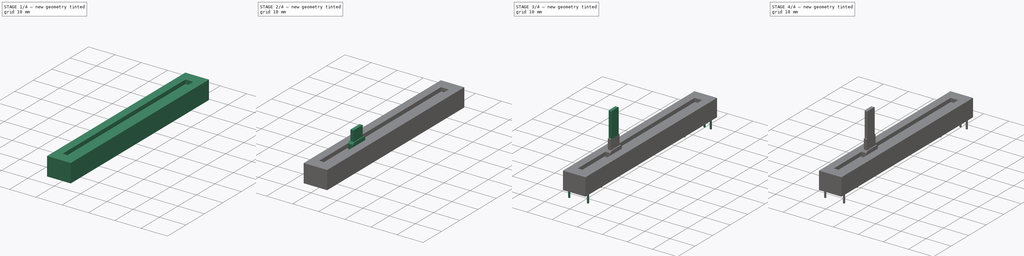
[diagram: build sequence overview — one tinted view per stage of 4, left to right]
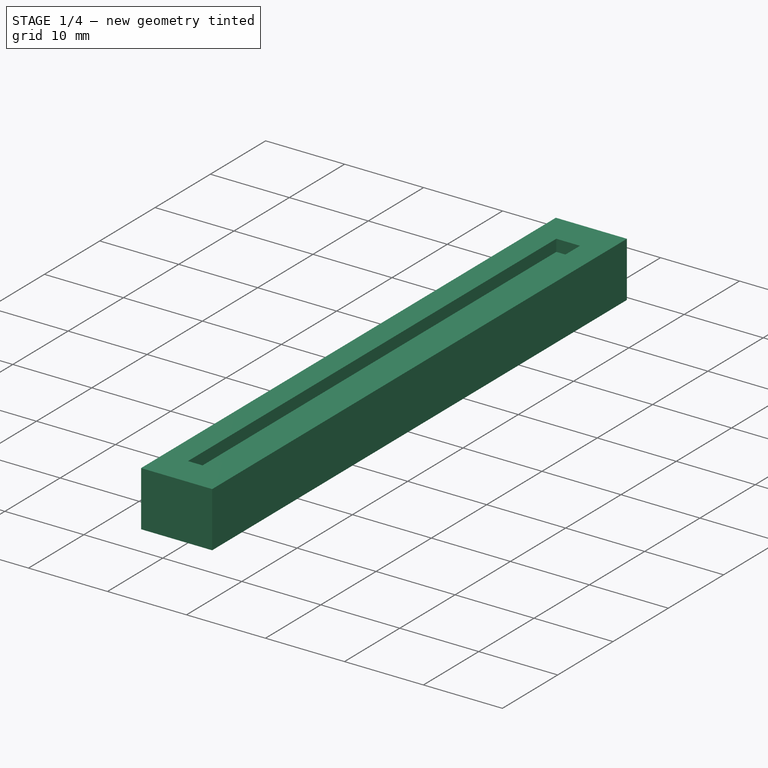
[diagram: stage 1 of 4 — iso view after this stage's code; geometry added in this stage tinted green]
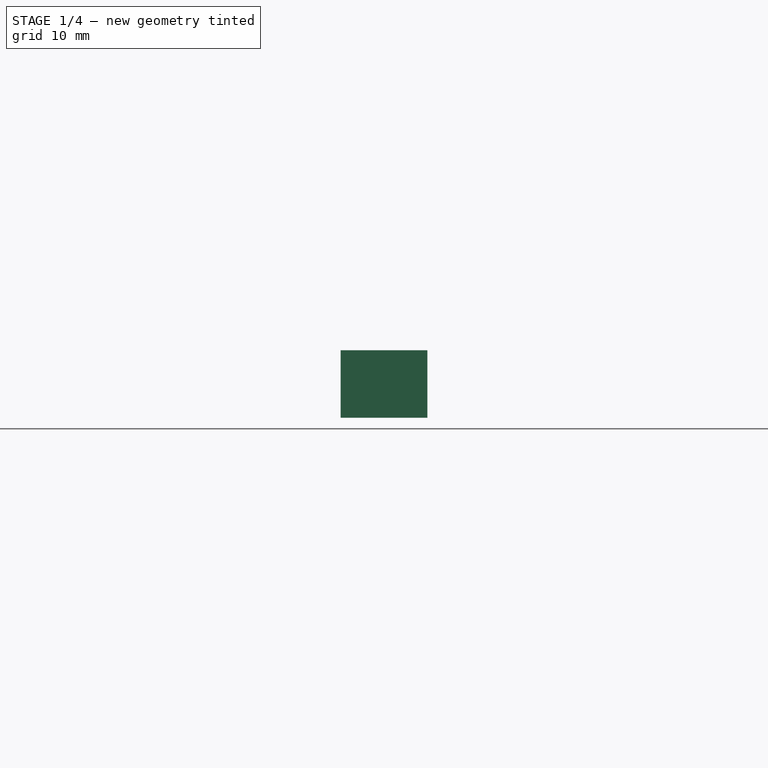
[diagram: stage 1 of 4 — front view after this stage's code; geometry added in this stage tinted green]
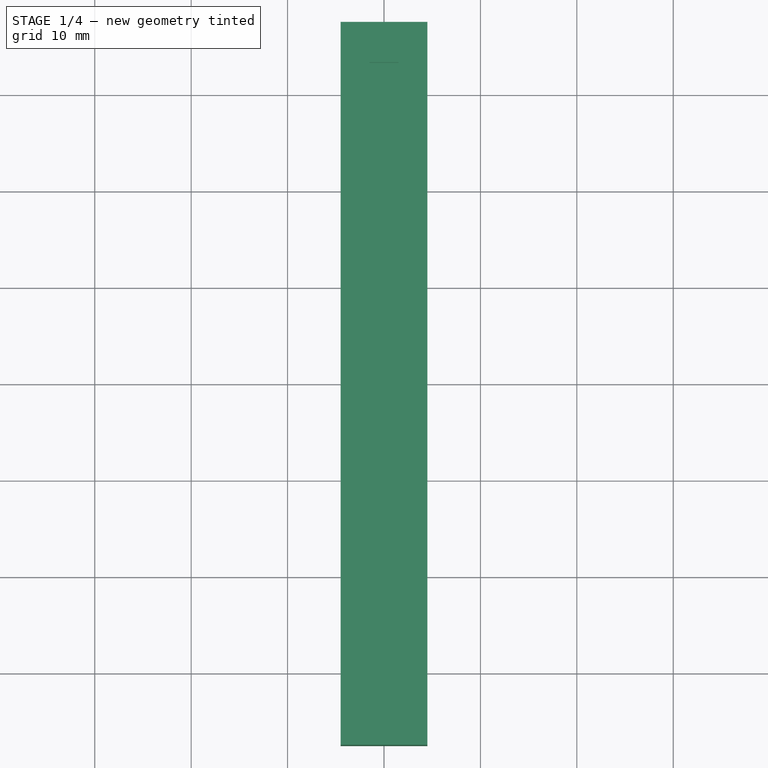
[diagram: stage 1 of 4 — top view after this stage's code; geometry added in this stage tinted green]
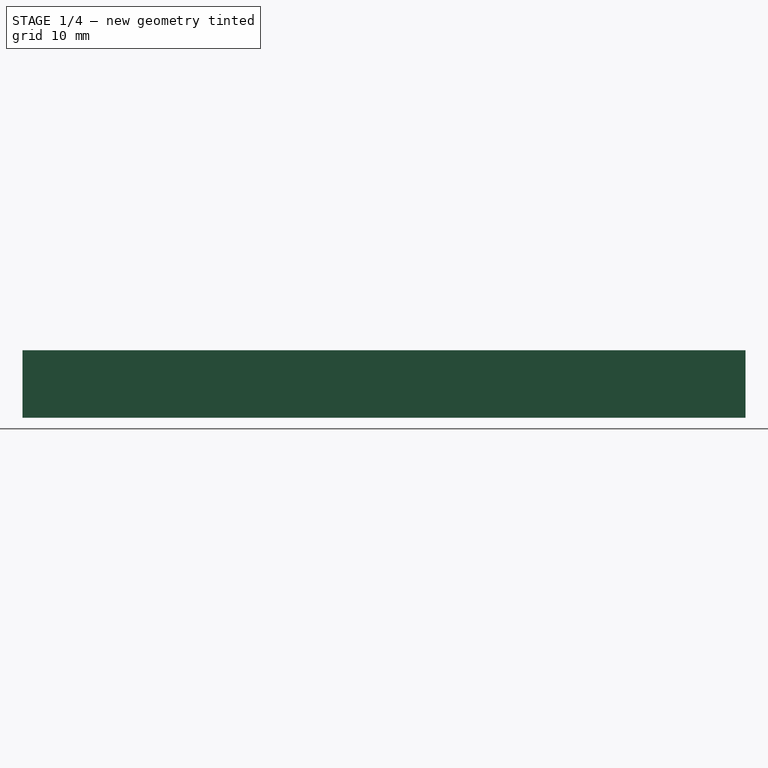
[diagram: stage 1 of 4 — right view after this stage's code; geometry added in this stage tinted green]
FCSTD DOCUMENT  (FreeCAD 0.18R16146 (Git))
Label: ALPS_RS6011YA6009
License: All rights reserved
LicenseURL: http://en.wikipedia.org/wiki/All_rights_reserved
objects: Sketcher::SketchObject×7, PartDesign::Pad×5, PartDesign::Fillet×2, PartDesign::Pocket×1, PartDesign::Chamfer×1, PartDesign::Hole×1, PartDesign::Body×1
note: 25 computed .brp shape members not serialized (recipe doc carries the construction recipe); baked Part::Feature solids carry a one-line shape summary decoded from their .brp

FEATURE [Sketcher::SketchObject] Sketch
  MapMode = 5
  Support = -> [XY_Plane]
  sketch-geometry (4):
    g0: LineSegment StartX=-4.5 StartY=37.5 StartZ=0 EndX=4.5 EndY=37.5 EndZ=0
    g1: LineSegment StartX=4.5 StartY=37.5 StartZ=0 EndX=4.5 EndY=-37.5 EndZ=0
    g2: LineSegment StartX=4.5 StartY=-37.5 StartZ=0 EndX=-4.5 EndY=-37.5 EndZ=0
    g3: LineSegment StartX=-4.5 StartY=-37.5 StartZ=0 EndX=-4.5 EndY=37.5 EndZ=0
  constraints (11):
    c: Coincident(g0,g1)
    c: Coincident(g1,g2)
    c: Coincident(g2,g3)
    c: Coincident(g3,g0)
    c: Horizontal(g0)
    c: Horizontal(g2)
    c: Vertical(g1)
    c: Vertical(g3)
    c: DistanceX(g0,g0) = 9
    c: DistanceY(g1,g1) = 75
    c: Symmetric(g0,g1,g-1)
FEATURE [PartDesign::Pad] Pad
  Length = 7
  Length2 = 100
  Profile = -> Sketch
  Type = 0
FEATURE [Sketcher::SketchObject] Sketch001
  MapMode = 5
  Placement = pos=(0,0,7) rot=(0,0,1;0rad)
  Support = -> [Pad]
  sketch-geometry (4):
    g0: LineSegment StartX=-1.5 StartY=33.3 StartZ=0 EndX=1.5 EndY=33.3 EndZ=0
    g1: LineSegment StartX=1.5 StartY=33.3 StartZ=0 EndX=1.5 EndY=-33.3 EndZ=0
    g2: LineSegment StartX=1.5 StartY=-33.3 StartZ=0 EndX=-1.5 EndY=-33.3 EndZ=0
    g3: LineSegment StartX=-1.5 StartY=-33.3 StartZ=0 EndX=-1.5 EndY=33.3 EndZ=0
  constraints (11):
    c: Coincident(g0,g1)
    c: Coincident(g1,g2)
    c: Coincident(g2,g3)
    c: Coincident(g3,g0)
    c: Horizontal(g0)
    c: Horizontal(g2)
    c: Vertical(g1)
    c: Vertical(g3)
    c: Symmetric(g0,g1,g-1)
    c: DistanceX(g0,g0) = 3
    c: DistanceY(g1,g1) = 66.6
FEATURE [PartDesign::Pocket] Pocket
  BaseFeature = -> Pad
  Length = 1.5
  Length2 = 100
  Profile = -> Sketch001
  Type = 0
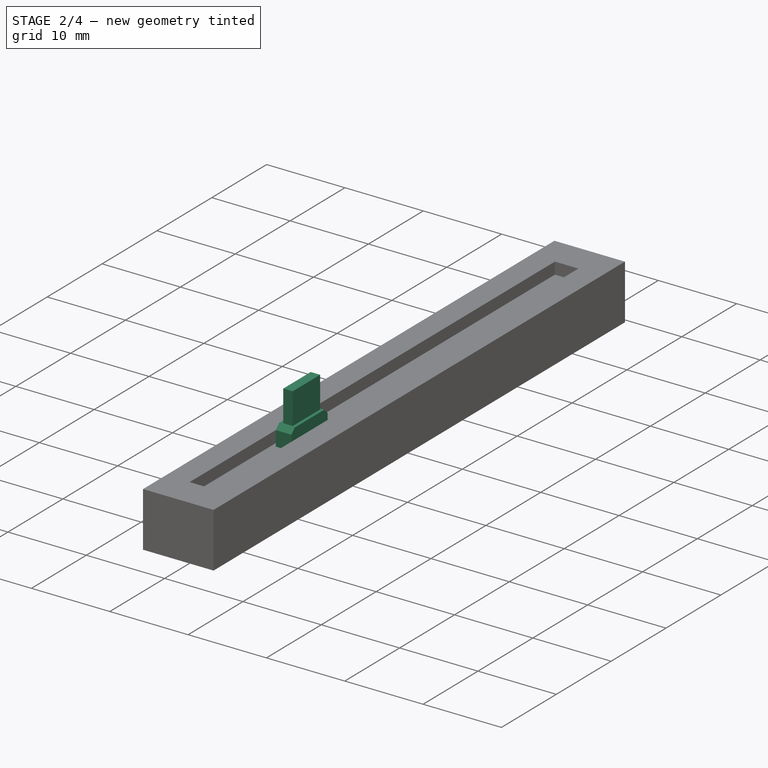
[diagram: stage 2 of 4 — iso view after this stage's code; geometry added in this stage tinted green]
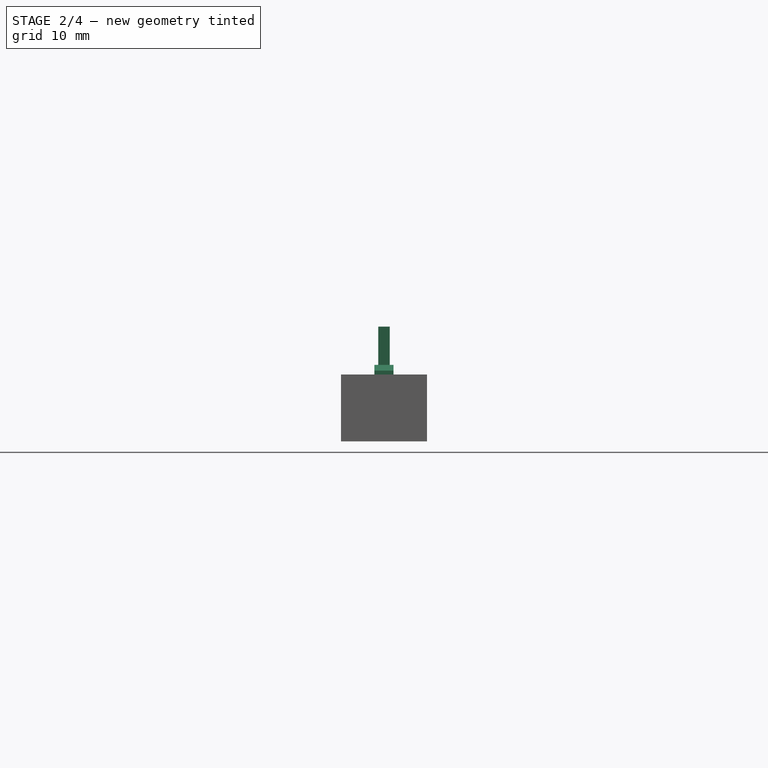
[diagram: stage 2 of 4 — front view after this stage's code; geometry added in this stage tinted green]
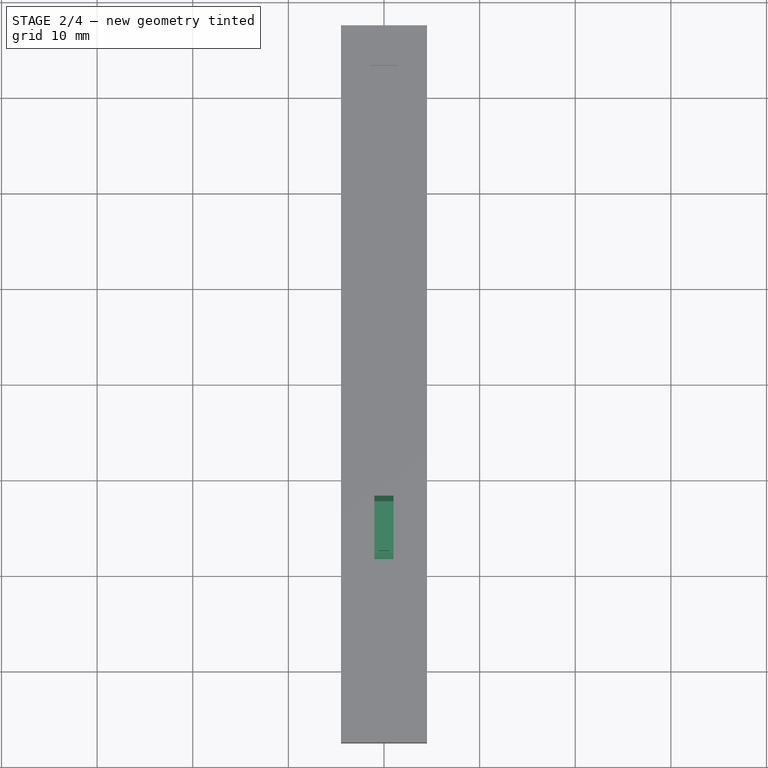
[diagram: stage 2 of 4 — top view after this stage's code; geometry added in this stage tinted green]
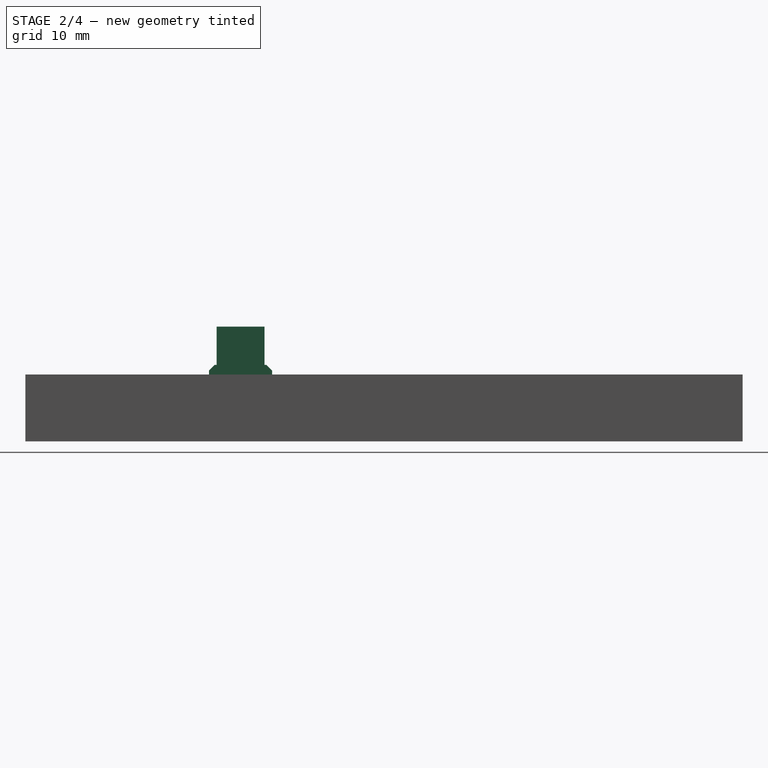
[diagram: stage 2 of 4 — right view after this stage's code; geometry added in this stage tinted green]
FEATURE [Sketcher::SketchObject] Sketch002
  MapMode = 5
  Placement = pos=(0,0,5.5) rot=(0,0,1;0rad)
  Support = -> [Pocket]
  sketch-geometry (5):
    g0: LineSegment StartX=-1 StartY=-11.7 StartZ=0 EndX=1 EndY=-11.7 EndZ=0
    g1: LineSegment StartX=1 StartY=-11.7 StartZ=0 EndX=1 EndY=-18.3 EndZ=0
    g2: LineSegment StartX=1 StartY=-18.3 StartZ=0 EndX=-1 EndY=-18.3 EndZ=0
    g3: LineSegment StartX=-1 StartY=-18.3 StartZ=0 EndX=-1 EndY=-11.7 EndZ=0
    g4: GeomPoint X=0 Y=-15 Z=0
  constraints (13):
    c: Coincident(g0,g1)
    c: Coincident(g1,g2)
    c: Coincident(g2,g3)
    c: Coincident(g3,g0)
    c: Horizontal(g0)
    c: Horizontal(g2)
    c: Vertical(g1)
    c: Vertical(g3)
    c: PointOnObject(g4,g-2)
    c: Symmetric(g0,g1,g4)
    c: DistanceY(g1,g1) = 6.6  'Länge Schieber'
    c: DistanceY(g4,g-1) = 15  'Verschiebung'
    c: DistanceX(g0,g0) = 2
FEATURE [PartDesign::Pad] Pad001  label="Schiebersockel"
  BaseFeature = -> Pocket
  Length = 2.5
  Length2 = 100
  Profile = -> Sketch002
  Type = 0
FEATURE [PartDesign::Chamfer] Chamfer
  Base = -> Pad001 [Edge35,Edge31]
  BaseFeature = -> Pad001
  Size = 0.6
FEATURE [Sketcher::SketchObject] Sketch003
  ExternalGeometry = -> [Chamfer]
  MapMode = 5
  Placement = pos=(0,0,8) rot=(0,0,1;0rad)
  Support = -> [Chamfer]
  sketch-geometry (5):
    g0: LineSegment StartX=-0.6 StartY=-12.5 StartZ=0 EndX=0.6 EndY=-12.5 EndZ=0
    g1: LineSegment StartX=0.6 StartY=-12.5 StartZ=0 EndX=0.6 EndY=-17.5 EndZ=0
    g2: LineSegment StartX=0.6 StartY=-17.5 StartZ=0 EndX=-0.6 EndY=-17.5 EndZ=0
    g3: LineSegment StartX=-0.6 StartY=-17.5 StartZ=0 EndX=-0.6 EndY=-12.5 EndZ=0
    g4: GeomPoint X=-6e-16 Y=-15 Z=0
  constraints (12):
    c: Coincident(g0,g1)
    c: Coincident(g1,g2)
    c: Coincident(g2,g3)
    c: Coincident(g3,g0)
    c: Horizontal(g0)
    c: Horizontal(g2)
    c: Vertical(g1)
    c: Vertical(g3)
    c: Symmetric(g0,g1,g4)
    c: DistanceY(g1,g1) = 5
    c: Symmetric(g-3,g-4,g4)
    c: DistanceX(g0,g0) = 1.2
FEATURE [PartDesign::Pad] Pad002  label="Schieber"
  BaseFeature = -> Chamfer
  Length = 4
  Length2 = 100
  Profile = -> Sketch003
  Type = 0
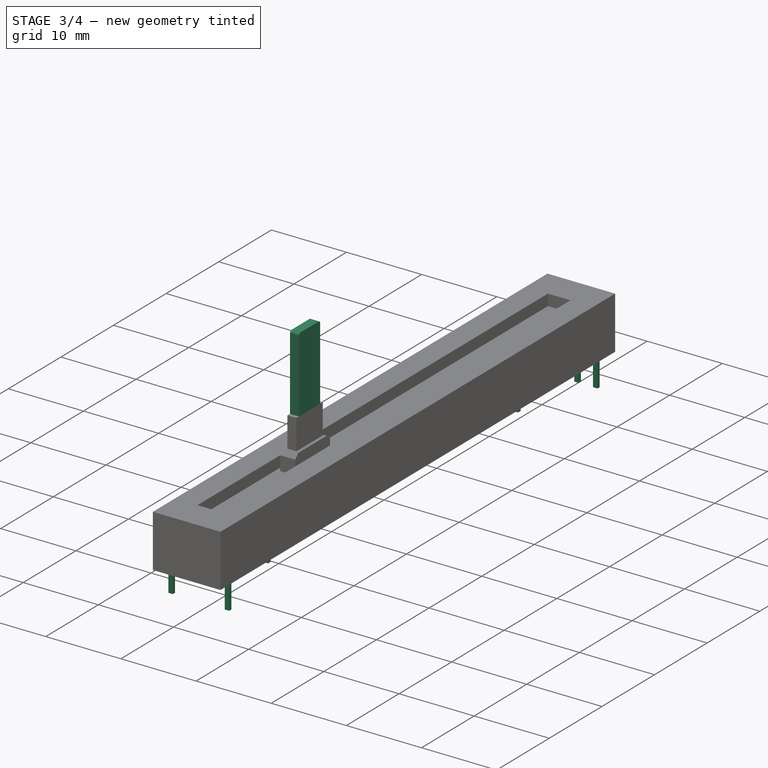
[diagram: stage 3 of 4 — iso view after this stage's code; geometry added in this stage tinted green]
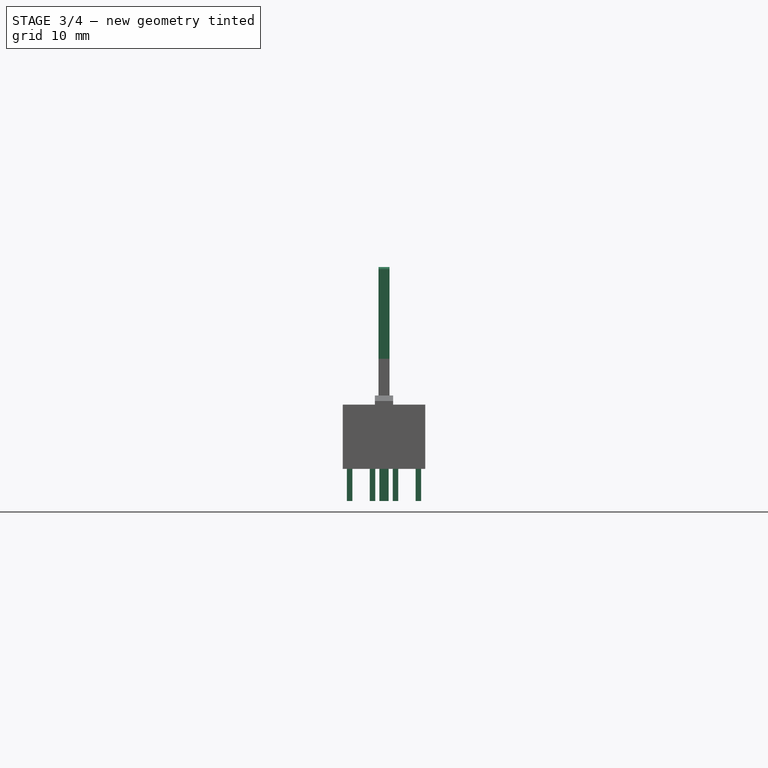
[diagram: stage 3 of 4 — front view after this stage's code; geometry added in this stage tinted green]
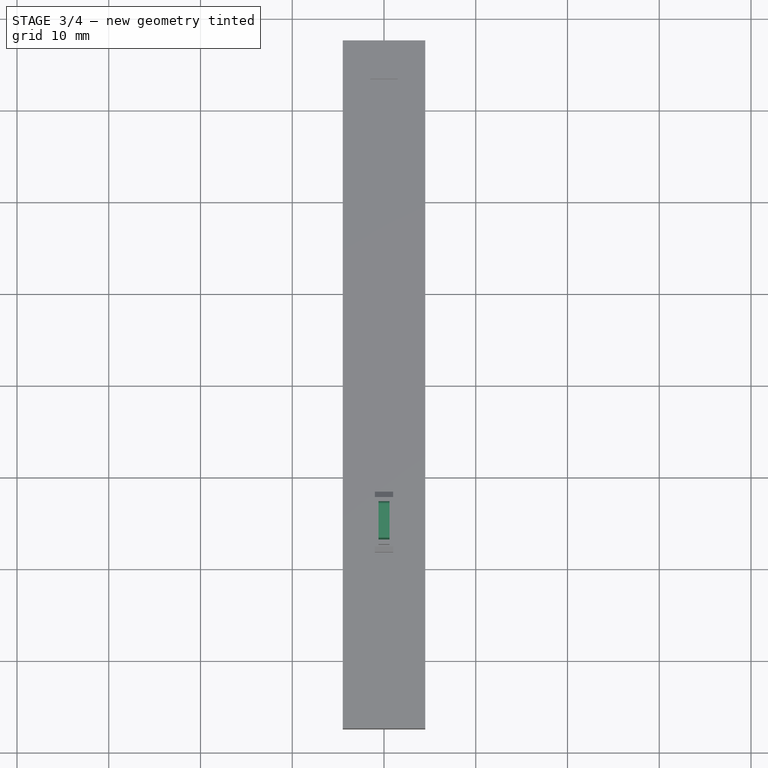
[diagram: stage 3 of 4 — top view after this stage's code; geometry added in this stage tinted green]
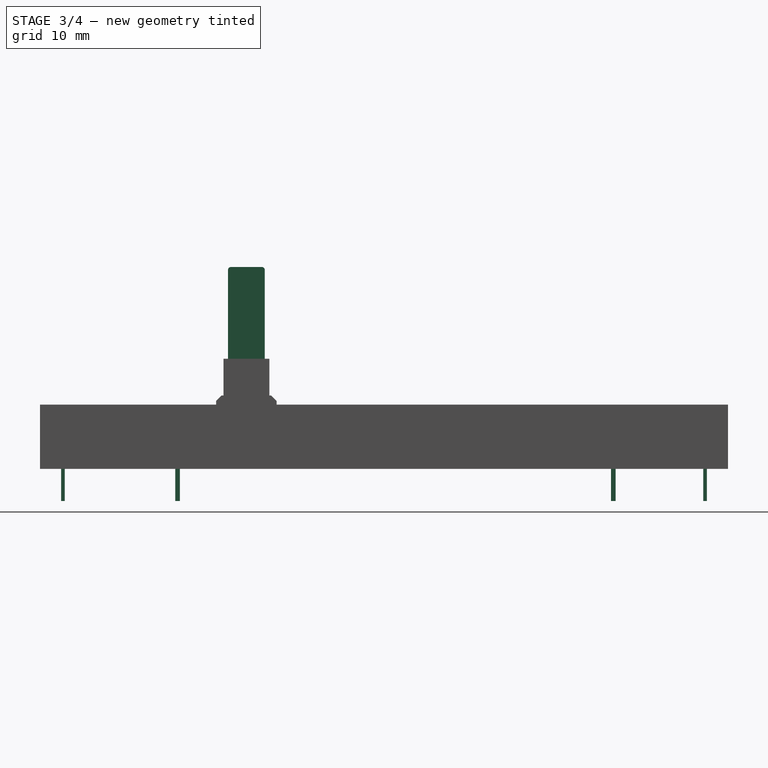
[diagram: stage 3 of 4 — right view after this stage's code; geometry added in this stage tinted green]
FEATURE [Sketcher::SketchObject] CopySketch004  label="Sketch004"
  Placement = pos=(0,0,12) rot=(0,0,1;0rad)
  sketch-geometry (5):
    g0: GeomPoint X=8e-16 Y=-15 Z=0
    g1: LineSegment StartX=-0.6 StartY=-13 StartZ=0 EndX=0.6 EndY=-13 EndZ=0
    g2: LineSegment StartX=0.6 StartY=-13 StartZ=0 EndX=0.6 EndY=-17 EndZ=0
    g3: LineSegment StartX=0.6 StartY=-17 StartZ=0 EndX=-0.6 EndY=-17 EndZ=0
    g4: LineSegment StartX=-0.6 StartY=-17 StartZ=0 EndX=-0.6 EndY=-13 EndZ=0
  constraints (10):
    c: Coincident(g1,g2)
    c: Coincident(g2,g3)
    c: Coincident(g3,g4)
    c: Coincident(g4,g1)
    c: Horizontal(g1)
    c: Horizontal(g3)
    c: Vertical(g2)
    c: Vertical(g4)
    c: DistanceY(g2,g2) = 4
    c: Symmetric(g2,g1,g0)
FEATURE [PartDesign::Pad] Pad003
  BaseFeature = -> Pad002
  Length = 10
  Length2 = 100
  Profile = -> CopySketch004
  Type = 0
FEATURE [PartDesign::Fillet] Fillet
  Base = -> Pad003 [Edge68,Edge67]
  BaseFeature = -> Pad003
  Radius = 0.3
FEATURE [Sketcher::SketchObject] Sketch004  label="BohrskizzeM2"
  MapMode = 5
  Placement = pos=(0,0,7) rot=(0,0,1;0rad)
  Support = -> [Fillet]
  sketch-geometry (2):
    g0: Circle CenterX=0 CenterY=35.312 CenterZ=0 NormalX=0 NormalY=0 NormalZ=1 AngleXU=0 Radius=1
    g1: Circle CenterX=0 CenterY=-35.688 CenterZ=0 NormalX=0 NormalY=0 NormalZ=1 AngleXU=0 Radius=1
  constraints (5):
    c: PointOnObject(g0,g-2)
    c: Diameter(g0) = 2  'Gewinde M2'
    c: PointOnObject(g1,g-2)
    c: Equal(g1,g0)
    c: DistanceY(g1,g0) = 71
FEATURE [Sketcher::SketchObject] Sketch005  label="Sketch006"
  MapMode = 5
  Placement = pos=(0,0,0) rot=(1,0,0;3.14159rad)
  Support = -> [Fillet]
  sketch-geometry (40):
    g0: LineSegment [constr] StartX=3.75 StartY=-35 StartZ=0 EndX=-3.75 EndY=-35 EndZ=0
    g1: LineSegment [constr] StartX=-3.75 StartY=-35 StartZ=0 EndX=-3.75 EndY=35 EndZ=0
    g2: LineSegment [constr] StartX=-3.75 StartY=35 StartZ=0 EndX=3.75 EndY=35 EndZ=0
    g3: LineSegment [constr] StartX=3.75 StartY=35 StartZ=0 EndX=3.75 EndY=-35 EndZ=0
    g4: LineSegment StartX=-4.05 StartY=35.2 StartZ=0 EndX=-3.45 EndY=35.2 EndZ=0
    g5: LineSegment StartX=-3.45 StartY=35.2 StartZ=0 EndX=-3.45 EndY=34.8 EndZ=0
    g6: LineSegment StartX=-3.45 StartY=34.8 StartZ=0 EndX=-4.05 EndY=34.8 EndZ=0
    g7: LineSegment StartX=-4.05 StartY=34.8 StartZ=0 EndX=-4.05 EndY=35.2 EndZ=0
    g8: LineSegment StartX=-4.05 StartY=-34.8 StartZ=0 EndX=-3.45 EndY=-34.8 EndZ=0
    g9: LineSegment StartX=-3.45 StartY=-34.8 StartZ=0 EndX=-3.45 EndY=-35.2 EndZ=0
    g10: LineSegment StartX=-3.45 StartY=-35.2 StartZ=0 EndX=-4.05 EndY=-35.2 EndZ=0
    g11: LineSegment StartX=-4.05 StartY=-35.2 StartZ=0 EndX=-4.05 EndY=-34.8 EndZ=0
    g12: LineSegment StartX=3.45 StartY=-34.8 StartZ=0 EndX=4.05 EndY=-34.8 EndZ=0
    g13: LineSegment StartX=4.05 StartY=-34.8 StartZ=0 EndX=4.05 EndY=-35.2 EndZ=0
    g14: LineSegment StartX=4.05 StartY=-35.2 StartZ=0 EndX=3.45 EndY=-35.2 EndZ=0
    g15: LineSegment StartX=3.45 StartY=-35.2 StartZ=0 EndX=3.45 EndY=-34.8 EndZ=0
    g16: GeomPoint X=-1.25 Y=-35 Z=0
    g17: GeomPoint X=1.25 Y=-35 Z=0
    g18: LineSegment StartX=-1.55 StartY=-34.8 StartZ=0 EndX=-0.95 EndY=-34.8 EndZ=0
    g19: LineSegment StartX=-0.95 StartY=-34.8 StartZ=0 EndX=-0.95 EndY=-35.2 EndZ=0
    g20: LineSegment StartX=-0.95 StartY=-35.2 StartZ=0 EndX=-1.55 EndY=-35.2 EndZ=0
    g21: LineSegment StartX=-1.55 StartY=-35.2 StartZ=0 EndX=-1.55 EndY=-34.8 EndZ=0
    g22: LineSegment StartX=0.95 StartY=-34.8 StartZ=0 EndX=1.55 EndY=-34.8 EndZ=0
    g23: LineSegment StartX=1.55 StartY=-34.8 StartZ=0 EndX=1.55 EndY=-35.2 EndZ=0
    g24: LineSegment StartX=1.55 StartY=-35.2 StartZ=0 EndX=0.95 EndY=-35.2 EndZ=0
    g25: LineSegment StartX=0.95 StartY=-35.2 StartZ=0 EndX=0.95 EndY=-34.8 EndZ=0
    g26: GeomPoint X=0 Y=22.5 Z=0
    g27: GeomPoint X=0 Y=-25 Z=0
    g28: LineSegment StartX=-0.5 StartY=22.75 StartZ=0 EndX=0.5 EndY=22.75 EndZ=0
    g29: LineSegment StartX=0.5 StartY=22.75 StartZ=0 EndX=0.5 EndY=22.25 EndZ=0
    g30: LineSegment StartX=0.5 StartY=22.25 StartZ=0 EndX=-0.5 EndY=22.25 EndZ=0
    g31: LineSegment StartX=-0.5 StartY=22.25 StartZ=0 EndX=-0.5 EndY=22.75 EndZ=0
    g32: LineSegment StartX=-0.5 StartY=-24.75 StartZ=0 EndX=0.5 EndY=-24.75 EndZ=0
    g33: LineSegment StartX=0.5 StartY=-24.75 StartZ=0 EndX=0.5 EndY=-25.25 EndZ=0
    g34: LineSegment StartX=0.5 StartY=-25.25 StartZ=0 EndX=-0.5 EndY=-25.25 EndZ=0
    g35: LineSegment StartX=-0.5 StartY=-25.25 StartZ=0 EndX=-0.5 EndY=-24.75 EndZ=0
    g36: LineSegment StartX=3.45 StartY=35.2 StartZ=0 EndX=4.05 EndY=35.2 EndZ=0
    g37: LineSegment StartX=4.05 StartY=35.2 StartZ=0 EndX=4.05 EndY=34.8 EndZ=0
    g38: LineSegment StartX=4.05 StartY=34.8 StartZ=0 EndX=3.45 EndY=34.8 EndZ=0
    g39: LineSegment StartX=3.45 StartY=34.8 StartZ=0 EndX=3.45 EndY=35.2 EndZ=0
  constraints (106):
    c: Coincident(g0,g1)
    c: Coincident(g1,g2)
    c: Coincident(g2,g3)
    c: Coincident(g3,g0)
    c: Horizontal(g0)
    c: Horizontal(g2)
    c: Vertical(g1)
    c: Vertical(g3)
    c: DistanceY(g1,g1) = 70
    c: Symmetric(g0,g1,g-1)
    c: DistanceX(g2,g2) = 7.5
    c: Coincident(g4,g5)
    c: Coincident(g5,g6)
    c: Coincident(g6,g7)
    c: Coincident(g7,g4)
    c: Horizontal(g4)
    c: Horizontal(g6)
    c: Vertical(g5)
    c: Vertical(g7)
    c: DistanceX(g4,g4) = 0.6
    c: DistanceY(g5,g5) = 0.4
    c: Symmetric(g4,g5,g1)
    c: Coincident(g8,g9)
    c: Coincident(g9,g10)
    c: Coincident(g10,g11)
    c: Coincident(g11,g8)
    c: Horizontal(g8)
    c: Horizontal(g10)
    c: Vertical(g9)
    c: Vertical(g11)
    c: Coincident(g12,g13)
    c: Coincident(g13,g14)
    c: Coincident(g14,g15)
    c: Coincident(g15,g12)
    c: Horizontal(g12)
    c: Horizontal(g14)
    c: Vertical(g13)
    c: Vertical(g15)
    c: Symmetric(g8,g9,g0)
    c: Symmetric(g12,g13,g0)
    c: Equal(g8,g4)
    c: Equal(g9,g5)
    c: Equal(g15,g9)
    c: Equal(g14,g10)
    c: PointOnObject(g16,g0)
    c: DistanceX(g16,g17) = 2.5
    c: Symmetric(g16,g17,g-2)
    c: Coincident(g18,g19)
    c: Coincident(g19,g20)
    c: Coincident(g20,g21)
    c: Coincident(g21,g18)
    c: Horizontal(g18)
    c: Horizontal(g20)
    c: Vertical(g19)
    c: Vertical(g21)
    c: Coincident(g22,g23)
    c: Coincident(g23,g24)
    c: Coincident(g24,g25)
    c: Coincident(g25,g22)
    c: Horizontal(g22)
    c: Horizontal(g24)
    c: Vertical(g23)
    c: Vertical(g25)
    c: Equal(g18,g8)
    c: Equal(g22,g18)
    c: Equal(g21,g9)
    c: Equal(g25,g19)
    c: Symmetric(g18,g19,g16)
    c: Symmetric(g22,g23,g17)
    c: PointOnObject(g26,g-2)
    c: PointOnObject(g27,g-2)
    c: Coincident(g28,g29)
    c: Coincident(g29,g30)
    c: Coincident(g30,g31)
    c: Coincident(g31,g28)
    c: Horizontal(g28)
    c: Horizontal(g30)
    c: Vertical(g29)
    c: Vertical(g31)
    c: Symmetric(g28,g29,g26)
    c: DistanceY(g-1,g26) = 22.5
    c: DistanceY(g27,g-1) = 25
    c: DistanceY(g29,g29) = 0.5
    c: DistanceX(g28,g28) = 1
    c: Coincident(g32,g33)
    c: Coincident(g33,g34)
    c: Coincident(g34,g35)
    c: Coincident(g35,g32)
    c: Horizontal(g32)
    c: Horizontal(g34)
    c: Vertical(g33)
    c: Vertical(g35)
    c: Symmetric(g32,g33,g27)
    c: Equal(g32,g30)
    c: Equal(g29,g33)
    c: Coincident(g36,g37)
    c: Coincident(g37,g38)
    c: Coincident(g38,g39)
    c: Coincident(g39,g36)
    c: Horizontal(g36)
    c: Horizontal(g38)
    c: Vertical(g37)
    c: Vertical(g39)
    c: Symmetric(g36,g37,g2)
    c: Equal(g4,g36)
    c: Equal(g37,g5)
FEATURE [PartDesign::Pad] Pad004
  BaseFeature = -> Fillet
  Length = 3.5
  Length2 = 100
  Profile = -> Sketch005
  Type = 0
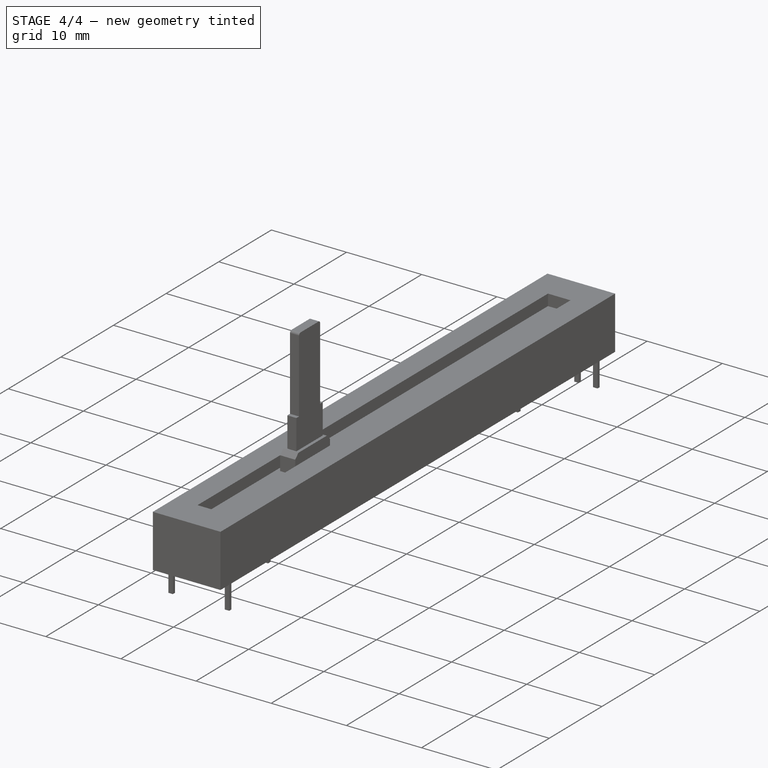
[diagram: stage 4 of 4 — iso view after this stage's code; geometry added in this stage tinted green]
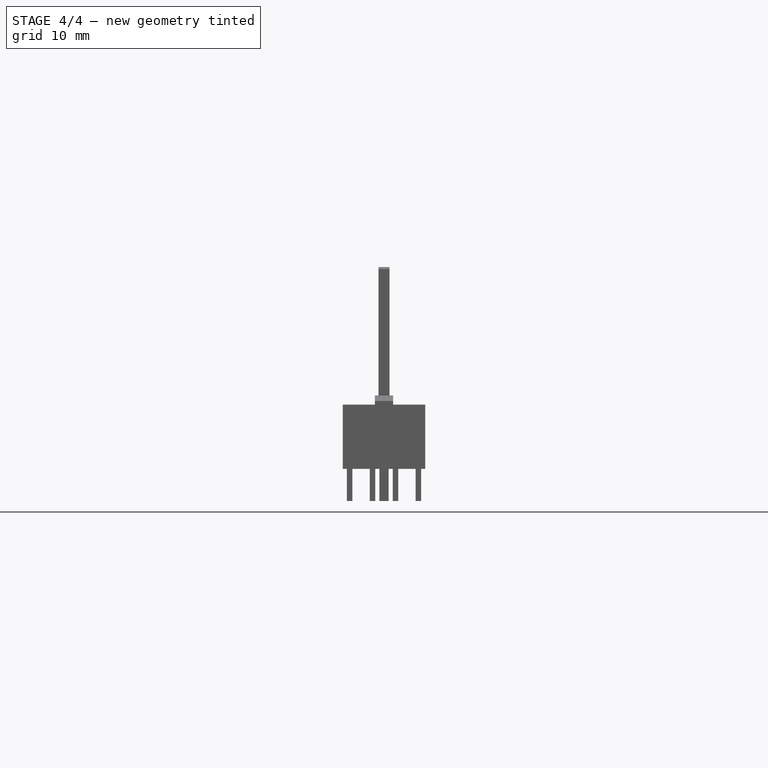
[diagram: stage 4 of 4 — front view after this stage's code; geometry added in this stage tinted green]
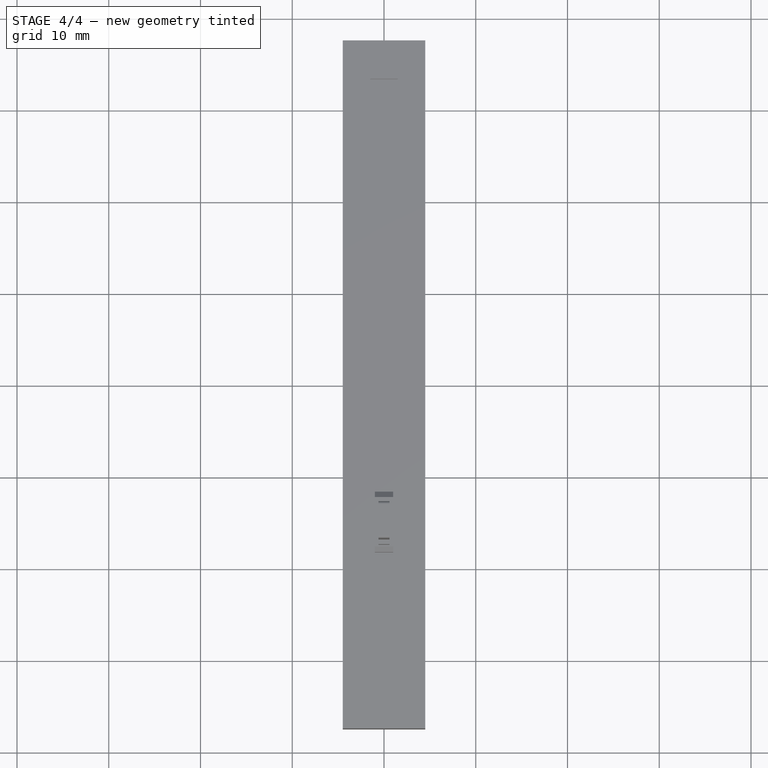
[diagram: stage 4 of 4 — top view after this stage's code; geometry added in this stage tinted green]
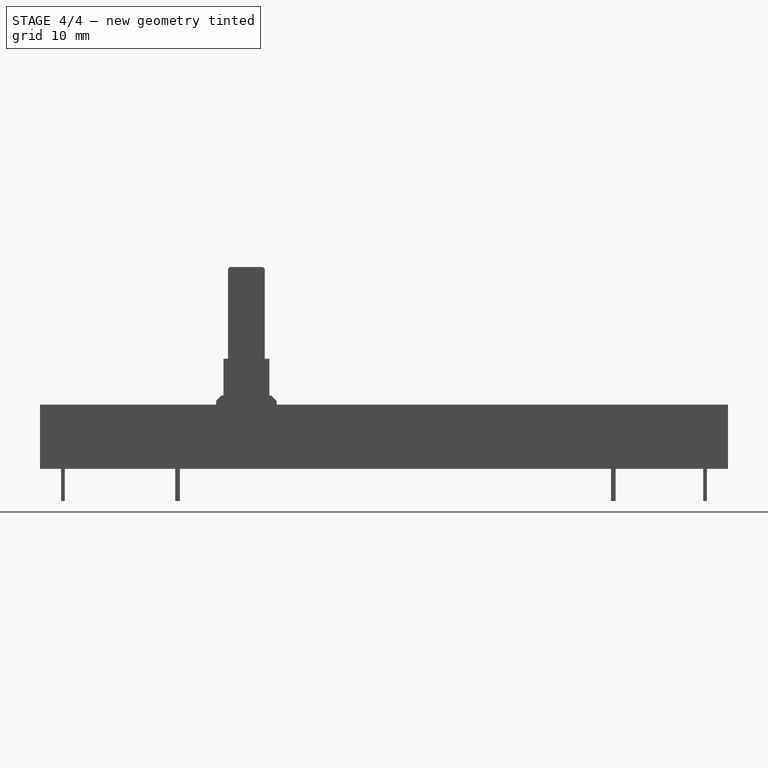
[diagram: stage 4 of 4 — right view after this stage's code; geometry added in this stage tinted green]
FEATURE [PartDesign::Hole] Hole  label="BohrungM2"
  BaseFeature = -> Pad004
  Depth = 2.5
  DepthType = 0
  Diameter = 2.2
  DrillPoint = 1
  DrillPointAngle = 118
  HoleCutCountersinkAngle = 90
  HoleCutDepth = 0
  HoleCutDiameter = 2
  HoleCutType = 0
  ModelActualThread = false
  Profile = -> Sketch004
  Tapered = false
  TaperedAngle = 90
  ThreadAngle = 0
  ThreadClass = 0
  ThreadCutOffInner = 0
  ThreadCutOffOuter = 0
  ThreadDirection = 0
  ThreadFit = 0
  ThreadPitch = 0
  ThreadSize = 1
  ThreadType = 1
  Threaded = false
FEATURE [PartDesign::Fillet] Fillet001
  Base = -> Pad004 [Edge129,Edge125,Edge109,Edge113,Edge149,Edge153,Edge157,Edge161,Edge117,Edge121,Edge141,Edge145,Edge133,Edge137,Edge165,Edge169]
  BaseFeature = -> Pad004
  Radius = 0.2
FEATURE [PartDesign::Body] Body
  Group = -> [Sketch,Pad,Sketch001,Pocket,Sketch002,Pad001,Chamfer,Sketch003,Pad002,Pad003,Fillet,Sketch004,Sketch005,Pad004,Hole,Fillet001]
  Origin = -> Origin
  Tip = -> Fillet001
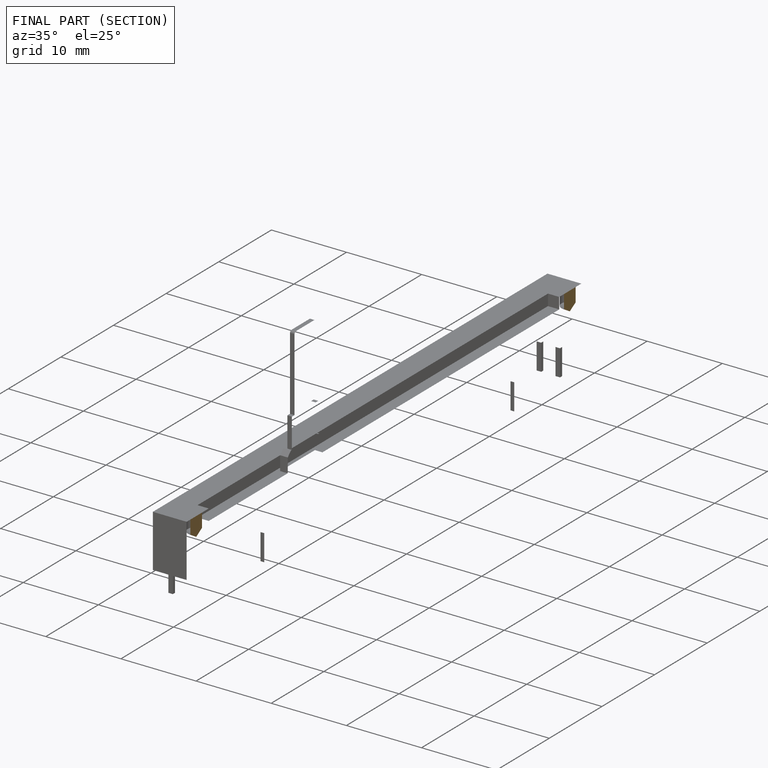
[diagram: finished part — half-section view (interior)]
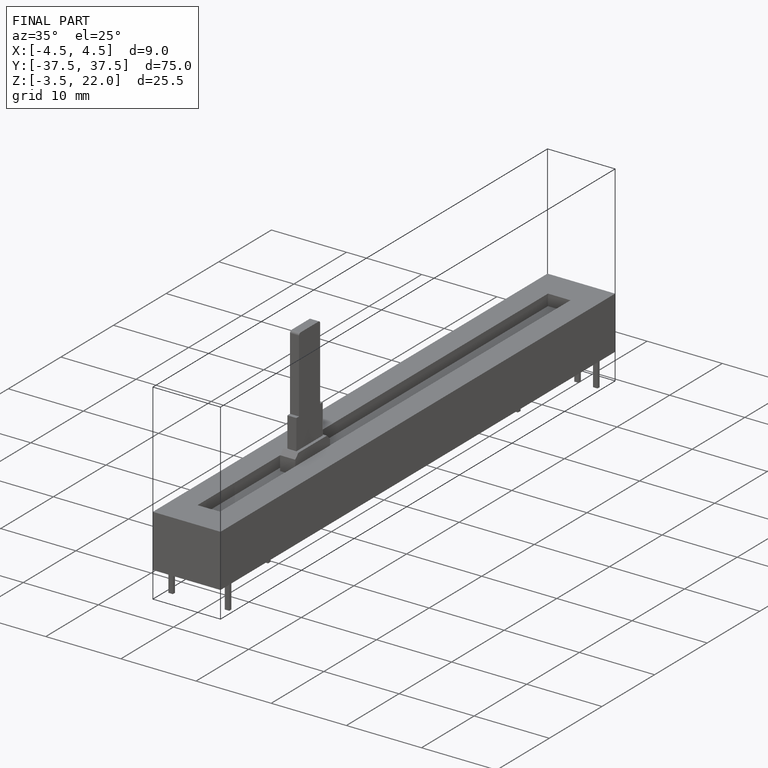
[diagram: finished part — iso view with bounding-box wireframe]
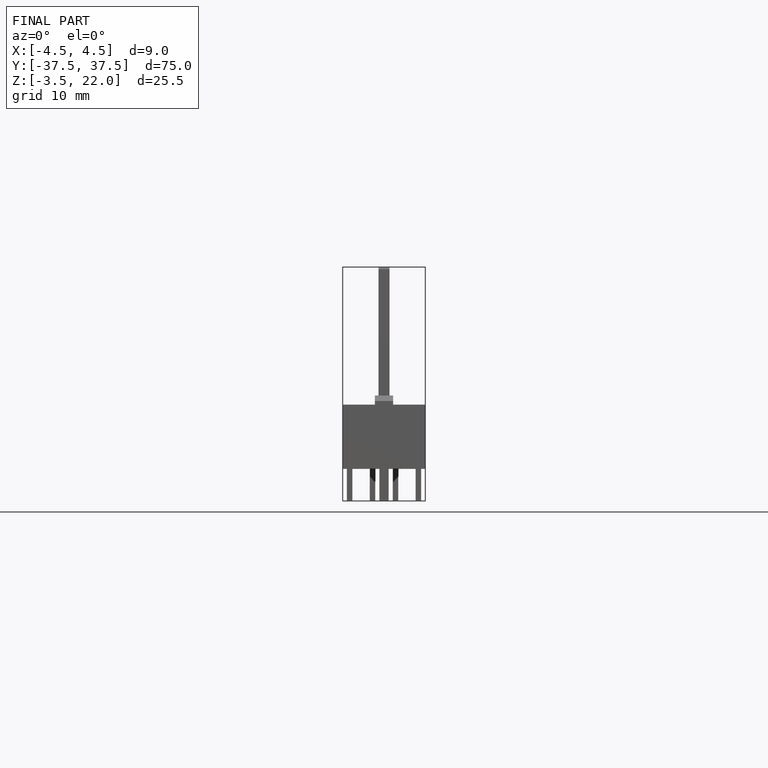
[diagram: finished part — front view with bounding-box wireframe]
